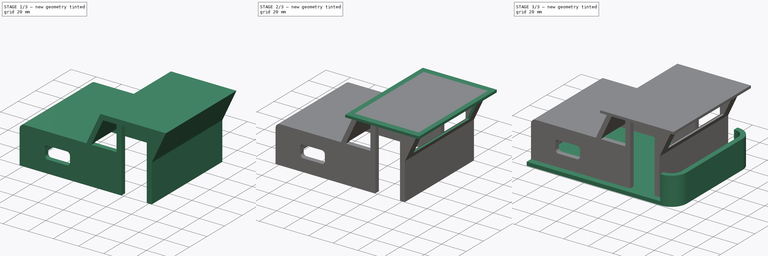
[diagram: build sequence overview — one tinted view per stage of 3, left to right]
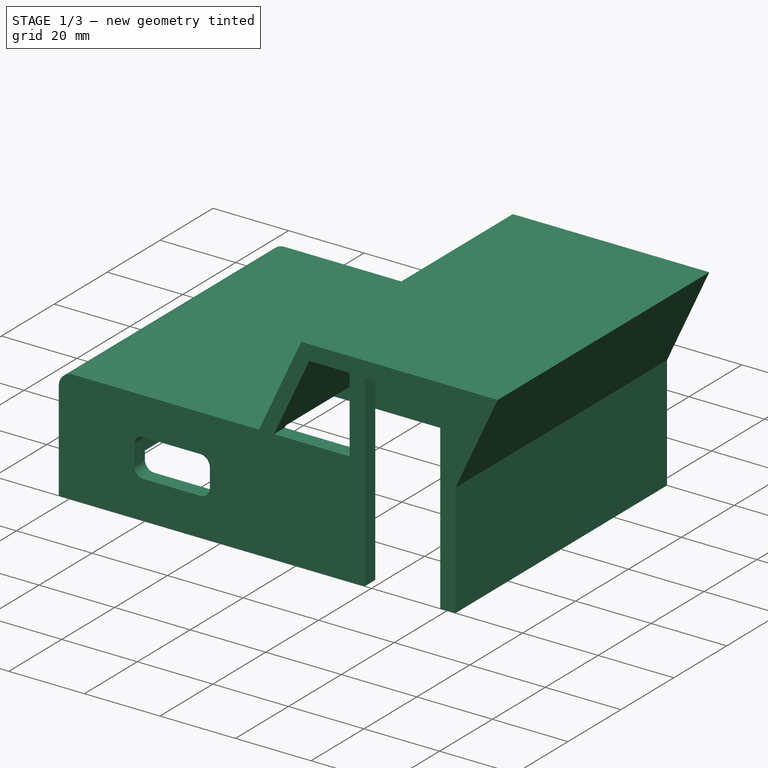
[diagram: stage 1 of 3 — iso view after this stage's code; geometry added in this stage tinted green]
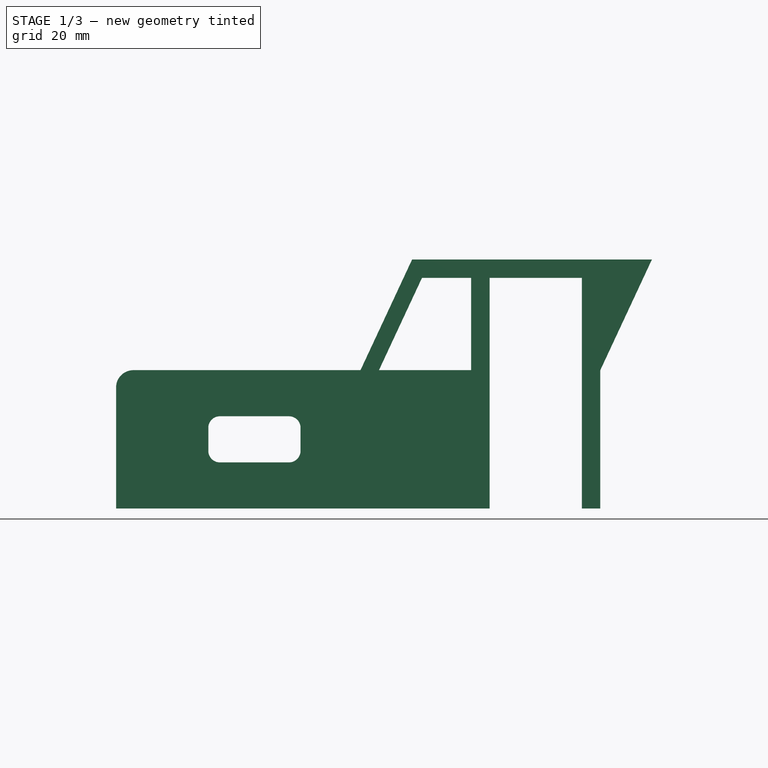
[diagram: stage 1 of 3 — front view after this stage's code; geometry added in this stage tinted green]
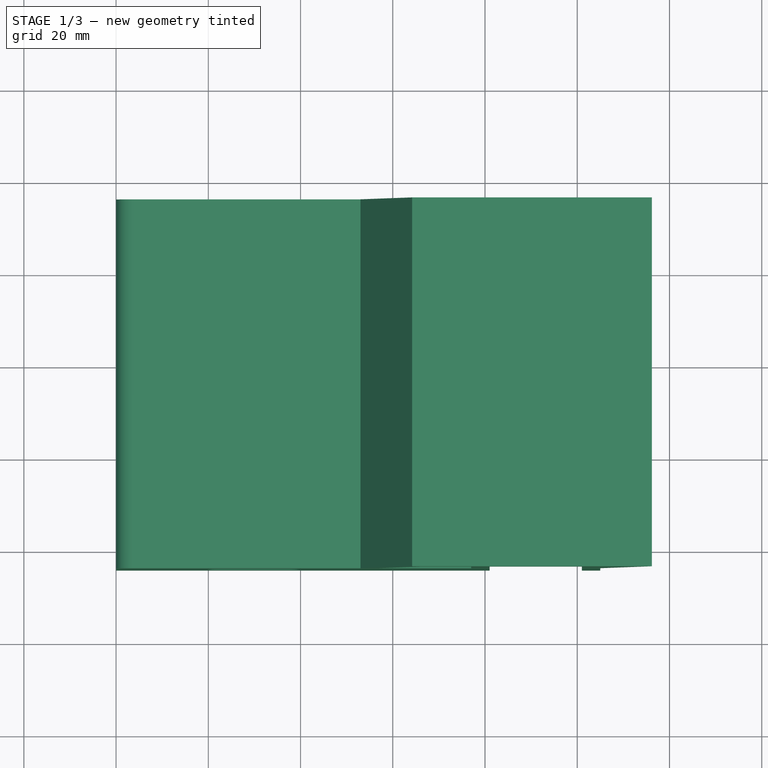
[diagram: stage 1 of 3 — top view after this stage's code; geometry added in this stage tinted green]
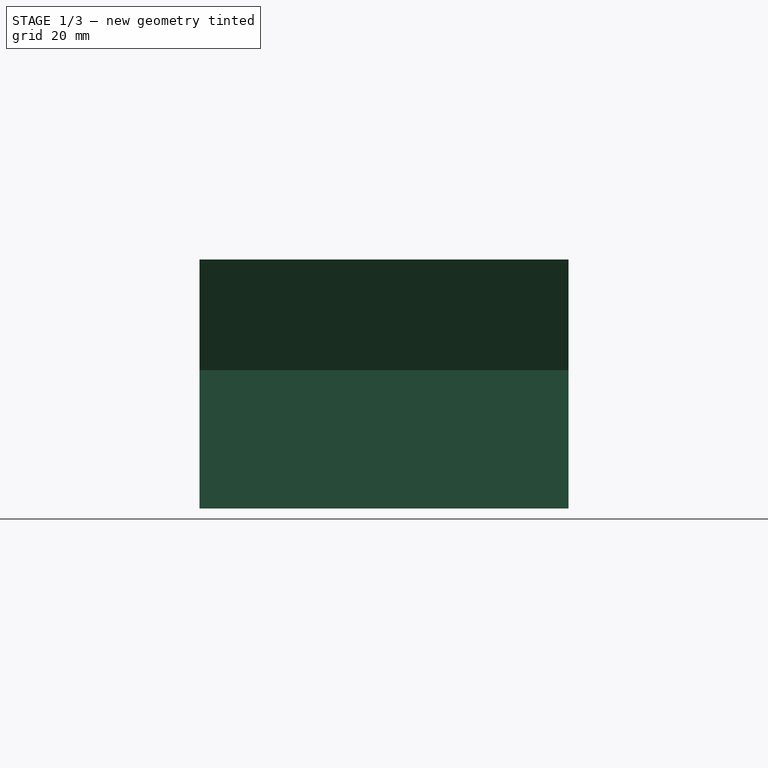
[diagram: stage 1 of 3 — right view after this stage's code; geometry added in this stage tinted green]
FCSTD DOCUMENT  (FreeCAD 0.20R29177 (Git))
Label: cabine
License: All rights reserved
LicenseURL: http://en.wikipedia.org/wiki/All_rights_reserved
objects: Sketcher::SketchObject×8, PartDesign::Pad×7, PartDesign::Pocket×1, PartDesign::Body×1
note: 25 computed .brp shape members not serialized (recipe doc carries the construction recipe); baked Part::Feature solids carry a one-line shape summary decoded from their .brp

FEATURE [Sketcher::SketchObject] Sketch
  FullyConstrained = true
  MapMode = 5
  Placement = pos=(0,0,0) rot=(1,0,0;1.5708rad)
  Support = -> [XZ_Plane]
  sketch-geometry (24):
    g0: LineSegment StartX=4.86624e-11 StartY=0 StartZ=0 EndX=4.86624e-11 EndY=26.25 EndZ=0
    g1: LineSegment StartX=3.75 StartY=30 StartZ=0 EndX=53 EndY=30 EndZ=0
    g2: LineSegment StartX=53 StartY=30 StartZ=0 EndX=64.1914 EndY=54 EndZ=0
    g3: LineSegment StartX=64.1914 StartY=54 StartZ=0 EndX=116.191 EndY=54 EndZ=0
    g4: LineSegment StartX=116.191 StartY=54 StartZ=0 EndX=105 EndY=30 EndZ=0
    g5: LineSegment StartX=105 StartY=30 StartZ=0 EndX=105 EndY=0 EndZ=0
    g6: LineSegment StartX=22.5 StartY=20 StartZ=0 EndX=37.5 EndY=20 EndZ=0
    g7: LineSegment StartX=40 StartY=17.5 StartZ=0 EndX=40 EndY=12.5 EndZ=0
    g8: LineSegment StartX=37.5 StartY=10 StartZ=0 EndX=22.5 EndY=10 EndZ=0
    g9: LineSegment StartX=20 StartY=12.5 StartZ=0 EndX=20 EndY=17.5 EndZ=0
    g10: LineSegment StartX=4.86624e-11 StartY=0 StartZ=0 EndX=81 EndY=0 EndZ=0
    g11: LineSegment StartX=81 StartY=0 StartZ=0 EndX=81 EndY=50 EndZ=0
    g12: LineSegment StartX=81 StartY=50 StartZ=0 EndX=101 EndY=50 EndZ=0
    g13: LineSegment StartX=101 StartY=50 StartZ=0 EndX=101 EndY=0 EndZ=0
    g14: LineSegment StartX=101 StartY=0 StartZ=0 EndX=105 EndY=0 EndZ=0
    g15: LineSegment StartX=77 StartY=50 StartZ=0 EndX=77 EndY=30 EndZ=0
    g16: LineSegment StartX=77 StartY=30 StartZ=0 EndX=57 EndY=30 EndZ=0
    g17: LineSegment StartX=57 StartY=30 StartZ=0 EndX=66.3262 EndY=50 EndZ=0
    g18: LineSegment StartX=66.3262 StartY=50 StartZ=0 EndX=77 EndY=50 EndZ=0
    g19: ArcOfCircle CenterX=22.5 CenterY=17.5 CenterZ=0 NormalX=0 NormalY=0 NormalZ=1 AngleXU=0 Radius=2.5 StartAngle=1.5708 EndAngle=3.14159
    g20: ArcOfCircle CenterX=22.5 CenterY=12.5 CenterZ=0 NormalX=0 NormalY=0 NormalZ=1 AngleXU=0 Radius=2.5 StartAngle=3.14159 EndAngle=4.71239
    g21: ArcOfCircle CenterX=37.5 CenterY=12.5 CenterZ=0 NormalX=0 NormalY=0 NormalZ=1 AngleXU=0 Radius=2.5 StartAngle=4.71239 EndAngle=6.28319
    g22: ArcOfCircle CenterX=37.5 CenterY=17.5 CenterZ=0 NormalX=0 NormalY=0 NormalZ=1 AngleXU=0 Radius=2.5 StartAngle=0 EndAngle=1.5708
    g23: ArcOfCircle CenterX=3.75 CenterY=26.25 CenterZ=0 NormalX=0 NormalY=0 NormalZ=1 AngleXU=0 Radius=3.75 StartAngle=1.5708 EndAngle=3.14159
  constraints (66):
    c: Coincident(g-1,g0)
    c: Horizontal(g1)
    c: Coincident(g1,g2)
    c: Coincident(g2,g3)
    c: Horizontal(g3)
    c: Coincident(g3,g4)
    c: Coincident(g4,g5)
    c: PointOnObject(g5,g-1)
    c: Vertical(g5)
    c: Horizontal(g6)
    c: Horizontal(g8)
    c: Vertical(g7)
    c: Vertical(g9)
    c: Coincident(g0,g10)
    c: Horizontal(g10)
    c: Coincident(g10,g11)
    c: Vertical(g11)
    c: Coincident(g11,g12)
    c: Horizontal(g12)
    c: Coincident(g12,g13)
    c: PointOnObject(g13,g-1)
    c: Vertical(g13)
    c: Coincident(g13,g14)
    c: Coincident(g14,g5)
    c: Vertical(g15)
    c: Coincident(g15,g16)
    c: Horizontal(g16)
    c: Coincident(g16,g17)
    c: Coincident(g17,g18)
    c: Coincident(g18,g15)
    c: Horizontal(g18)
    c: DistanceX(g0,g5) = 105
    c: DistanceX(g12,g12) = 20
    c: DistanceX(g14,g14) = 4
    c: DistanceX(g15,g11) = 4
    c: DistanceY(g16,g1) = 0
    c: DistanceX(g1,g16) = 4
    c: DistanceY(g4,g15) = 0
    c: DistanceY(g13,g13) = 50
    c: DistanceY(g15,g11) = 0
    c: DistanceY(g12,g3) = 4
    c: DistanceX(g3,g3) = 52
    c: Parallel(g4,g2)
    c: Parallel(g17,g2)
    c: Angle(g5,g4) = 2.70526
    c: Tangent(g6,g19) = 1.5708
    c: Tangent(g9,g19) = 1.5708
    c: Tangent(g9,g20) = 1.5708
    c: Tangent(g8,g20) = 1.5708
    c: Tangent(g8,g21) = 1.5708
    c: Tangent(g7,g21) = 1.5708
    c: Tangent(g7,g22) = 1.5708
    c: Tangent(g6,g22) = 1.5708
    c: Diameter(g22) = 5
    c: Diameter(g21) = 5
    c: Diameter(g19) = 5
    c: Diameter(g20) = 5
    c: DistanceY(g8,g6) = 10
    c: DistanceX(g9,g7) = 20
    c: DistanceX(g0,g9) = 20
    c: DistanceY(g0,g8) = 10
    c: Tangent(g1,g23) = 1.5708
    c: Tangent(g0,g23) = 1.5708
    c: Diameter(g23) = 7.5
    c: Vertical(g0)
    c: DistanceY(g0,g1) = 30
FEATURE [PartDesign::Pad] Pad
  Direction = (0,-1,2e-16)
  Length = 4
  Length2 = 10
  Placement = pos=(0,0,0) rot=(1,0,0;1.5708rad)
  Profile = -> Sketch
  ReferenceAxis = -> Sketch [N_Axis]
  Type = 0
FEATURE [Sketcher::SketchObject] Sketch001
  FullyConstrained = true
  MapMode = 5
  Placement = pos=(0,0,0) rot=(-1,0,0;1.5708rad)
  Support = -> [Pad]
  sketch-geometry (16):
    g0: LineSegment StartX=0 StartY=0 StartZ=0 EndX=0 EndY=-26.25 EndZ=0
    g1: LineSegment StartX=3.75 StartY=-30 StartZ=0 EndX=53 EndY=-30 EndZ=0
    g2: LineSegment StartX=53 StartY=-30 StartZ=0 EndX=64.1914 EndY=-54 EndZ=0
    g3: LineSegment StartX=64.1914 StartY=-54 StartZ=0 EndX=116.191 EndY=-54 EndZ=0
    g4: LineSegment StartX=116.191 StartY=-54 StartZ=0 EndX=105 EndY=-30 EndZ=0
    g5: LineSegment StartX=105 StartY=-30 StartZ=0 EndX=105 EndY=0 EndZ=0
    g6: LineSegment StartX=105 StartY=0 StartZ=0 EndX=103 EndY=0 EndZ=0
    g7: LineSegment StartX=103 StartY=0 StartZ=0 EndX=103 EndY=-30 EndZ=0
    g8: LineSegment StartX=103 StartY=-30 StartZ=0 EndX=113.259 EndY=-52 EndZ=0
    g9: LineSegment StartX=113.259 StartY=-52 StartZ=0 EndX=65.2588 EndY=-52 EndZ=0
    g10: LineSegment StartX=65.2588 StartY=-52 StartZ=0 EndX=54.0674 EndY=-28 EndZ=0
    g11: LineSegment StartX=54.0674 StartY=-28 StartZ=0 EndX=3.75 EndY=-28 EndZ=0
    g12: LineSegment StartX=2 StartY=-26.25 StartZ=0 EndX=2 EndY=0 EndZ=0
    g13: LineSegment StartX=2 StartY=0 StartZ=0 EndX=0 EndY=0 EndZ=0
    g14: ArcOfCircle CenterX=3.75 CenterY=-26.25 CenterZ=0 NormalX=0 NormalY=0 NormalZ=1 AngleXU=0 Radius=3.75 StartAngle=3.14159 EndAngle=4.71239
    g15: ArcOfCircle CenterX=3.75 CenterY=-26.25 CenterZ=0 NormalX=0 NormalY=0 NormalZ=1 AngleXU=0 Radius=1.75 StartAngle=3.14159 EndAngle=4.71239
  constraints (45):
    c: Coincident(g-1,g0)
    c: Horizontal(g1)
    c: Coincident(g1,g2)
    c: Coincident(g2,g3)
    c: Horizontal(g3)
    c: Coincident(g3,g4)
    c: Coincident(g4,g5)
    c: Vertical(g5)
    c: Coincident(g5,g6)
    c: Coincident(g6,g7)
    c: Vertical(g7)
    c: Coincident(g7,g8)
    c: Coincident(g8,g9)
    c: Horizontal(g9)
    c: Coincident(g9,g10)
    c: Coincident(g10,g11)
    c: Horizontal(g11)
    c: Vertical(g12)
    c: Coincident(g12,g13)
    c: Coincident(g13,g0)
    c: Horizontal(g13)
    c: PointOnObject(g5,g-1)
    c: Horizontal(g6)
    c: DistanceX(g0,g5) = 105
    c: DistanceX(g6,g6) = 2
    c: DistanceX(g13,g13) = 2
    c: Tangent(g0,g14) = -1.5708
    c: Tangent(g1,g14) = -1.5708
    c: Tangent(g11,g15) = 1.5708
    c: Tangent(g12,g15) = 1.5708
    c: Angle(g4,g5) = 2.70526
    c: DistanceY(g1,g4) = 0
    c: DistanceY(g1,g0) = 30
    c: Diameter(g14) = 7.5
    c: Vertical(g0)
    c: Diameter(g15) = 3.5
    c: DistanceY(g3,g8) = 2
    c: DistanceY(g3,g0) = 54
    c: Parallel(g8,g4)
    c: Parallel(g10,g4)
    c: DistanceY(g7,g4) = 0
    c: DistanceY(g1,g11) = 2
    c: Parallel(g2,g10)
    c: DistanceX(g0,g1) = 53
    c: DistanceX(g9,g9) = 48
FEATURE [PartDesign::Pad] Pad001
  BaseFeature = -> Pad
  Direction = (0,1,-2e-16)
  Length = 72
  Length2 = 10
  Placement = pos=(0,0,0) rot=(1,0,0;1.5708rad)
  Profile = -> Sketch001
  ReferenceAxis = -> Sketch001 [N_Axis]
  Type = 0
FEATURE [Sketcher::SketchObject] Sketch002
  FullyConstrained = true
  MapMode = 5
  Placement = pos=(0,72,-1.6e-14) rot=(-1,0,0;1.5708rad)
  Support = -> [Pad001]
  sketch-geometry (24):
    g0: LineSegment StartX=0 StartY=0 StartZ=0 EndX=0 EndY=-26.25 EndZ=0
    g1: LineSegment StartX=3.75 StartY=-30 StartZ=0 EndX=53 EndY=-30 EndZ=0
    g2: LineSegment StartX=53 StartY=-30 StartZ=0 EndX=64.1914 EndY=-54 EndZ=0
    g3: LineSegment StartX=64.1914 StartY=-54 StartZ=0 EndX=116.191 EndY=-54 EndZ=0
    g4: LineSegment StartX=116.191 StartY=-54 StartZ=0 EndX=105 EndY=-30 EndZ=0
    g5: LineSegment StartX=105 StartY=-30 StartZ=0 EndX=105 EndY=0 EndZ=0
    g6: LineSegment StartX=105 StartY=0 StartZ=0 EndX=101 EndY=0 EndZ=0
    g7: LineSegment StartX=101 StartY=0 StartZ=0 EndX=101 EndY=-50 EndZ=0
    g8: LineSegment StartX=101 StartY=-50 StartZ=0 EndX=81 EndY=-50 EndZ=0
    g9: LineSegment StartX=81 StartY=-50 StartZ=0 EndX=81 EndY=0 EndZ=0
    g10: LineSegment StartX=81 StartY=0 StartZ=0 EndX=0 EndY=0 EndZ=0
    g11: ArcOfCircle CenterX=3.75 CenterY=-26.25 CenterZ=0 NormalX=0 NormalY=0 NormalZ=1 AngleXU=0 Radius=3.75 StartAngle=3.14159 EndAngle=4.71239
    g12: LineSegment StartX=22.5 StartY=-10 StartZ=0 EndX=37.5 EndY=-10 EndZ=0
    g13: LineSegment StartX=40 StartY=-12.5 StartZ=0 EndX=40 EndY=-17.5 EndZ=0
    g14: LineSegment StartX=37.5 StartY=-20 StartZ=0 EndX=22.5 EndY=-20 EndZ=0
    g15: LineSegment StartX=20 StartY=-17.5 StartZ=0 EndX=20 EndY=-12.5 EndZ=0
    g16: LineSegment StartX=57 StartY=-30 StartZ=0 EndX=77 EndY=-30 EndZ=0
    g17: LineSegment StartX=77 StartY=-30 StartZ=0 EndX=77 EndY=-50 EndZ=0
    g18: LineSegment StartX=77 StartY=-50 StartZ=0 EndX=66.3262 EndY=-50 EndZ=0
    g19: LineSegment StartX=66.3262 StartY=-50 StartZ=0 EndX=57 EndY=-30 EndZ=0
    g20: ArcOfCircle CenterX=22.5 CenterY=-12.5 CenterZ=0 NormalX=0 NormalY=0 NormalZ=1 AngleXU=0 Radius=2.5 StartAngle=1.5708 EndAngle=3.14159
    g21: ArcOfCircle CenterX=22.5 CenterY=-17.5 CenterZ=0 NormalX=0 NormalY=0 NormalZ=1 AngleXU=0 Radius=2.5 StartAngle=3.14159 EndAngle=4.71239
    g22: ArcOfCircle CenterX=37.5 CenterY=-17.5 CenterZ=0 NormalX=0 NormalY=0 NormalZ=1 AngleXU=0 Radius=2.5 StartAngle=4.71239 EndAngle=6.28319
    g23: ArcOfCircle CenterX=37.5 CenterY=-12.5 CenterZ=0 NormalX=0 NormalY=0 NormalZ=1 AngleXU=0 Radius=2.5 StartAngle=0 EndAngle=1.5708
  constraints (66):
    c: Vertical(g0)
    c: Horizontal(g1)
    c: Coincident(g1,g2)
    c: Coincident(g2,g3)
    c: Horizontal(g3)
    c: Coincident(g3,g4)
    c: Coincident(g4,g5)
    c: PointOnObject(g5,g-1)
    c: Vertical(g5)
    c: Coincident(g5,g6)
    c: PointOnObject(g6,g-1)
    c: Coincident(g6,g7)
    c: Vertical(g7)
    c: Coincident(g7,g8)
    c: Horizontal(g8)
    c: Coincident(g8,g9)
    c: PointOnObject(g9,g-1)
    c: Vertical(g9)
    c: Coincident(g9,g10)
    c: Coincident(g0,g-1)
    c: Coincident(g10,g0)
    c: DistanceY(g7,g7) = 50
    c: DistanceY(g3,g7) = 4
    c: DistanceX(g0,g5) = 105
    c: Tangent(g0,g11) = -1.5708
    c: Tangent(g1,g11) = -1.5708
    c: DistanceY(g1,g0) = 30
    c: Diameter(g11) = 7.5
    c: Angle(g4,g5) = 2.70526
    c: Parallel(g4,g2)
    c: DistanceX(g8,g8) = 20
    c: Horizontal(g12)
    c: Horizontal(g14)
    c: Vertical(g13)
    c: Vertical(g15)
    c: Horizontal(g16)
    c: Coincident(g16,g17)
    c: Vertical(g17)
    c: Coincident(g17,g18)
    c: Coincident(g18,g19)
    c: Coincident(g19,g16)
    c: DistanceX(g17,g8) = 4
    c: Horizontal(g18)
    c: Parallel(g19,g2)
    c: DistanceY(g17,g8) = 0
    c: DistanceY(g4,g16) = 0
    c: DistanceY(g16,g1) = 0
    c: DistanceX(g3,g3) = 52
    c: DistanceX(g1,g16) = 4
    c: DistanceX(g6,g6) = 4
    c: Tangent(g12,g20) = 1.5708
    c: Tangent(g15,g20) = 1.5708
    c: Tangent(g15,g21) = 1.5708
    c: Tangent(g14,g21) = 1.5708
    c: Tangent(g14,g22) = 1.5708
    c: Tangent(g13,g22) = 1.5708
    c: Tangent(g13,g23) = 1.5708
    c: Tangent(g12,g23) = 1.5708
    c: DistanceY(g14,g12) = 10
    c: DistanceX(g15,g13) = 20
    c: DistanceY(g12,g0) = 10
    c: Diameter(g23) = 5
    c: Diameter(g22) = 5
    c: Diameter(g20) = 5
    c: Diameter(g21) = 5
    c: DistanceX(g0,g15) = 20
FEATURE [PartDesign::Pad] Pad002
  BaseFeature = -> Pad001
  Direction = (0,1,-2e-16)
  Length = 4
  Length2 = 10
  Placement = pos=(0,0,0) rot=(1,0,0;1.5708rad)
  Profile = -> Sketch002
  ReferenceAxis = -> Sketch002 [N_Axis]
  Type = 0
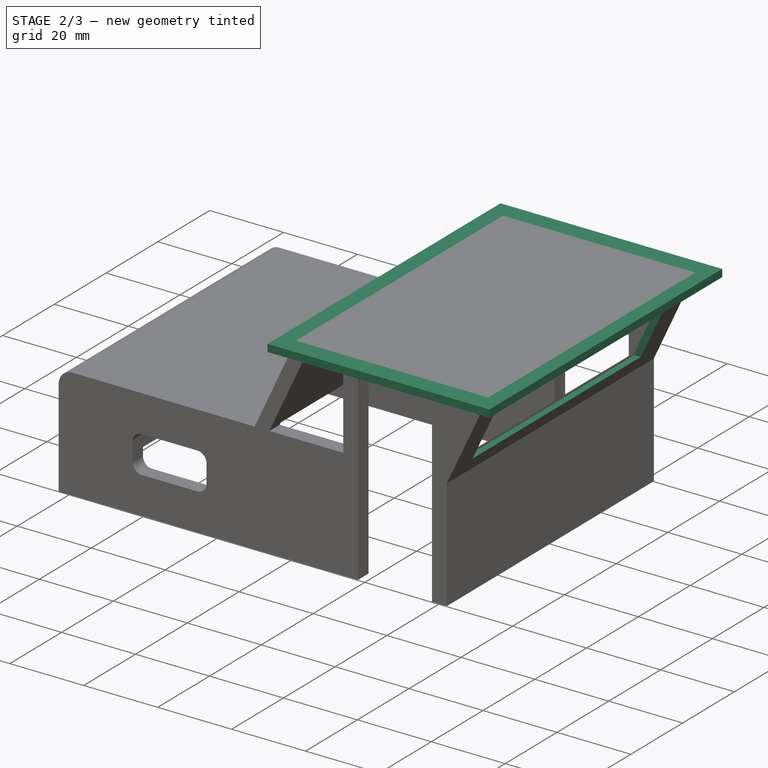
[diagram: stage 2 of 3 — iso view after this stage's code; geometry added in this stage tinted green]
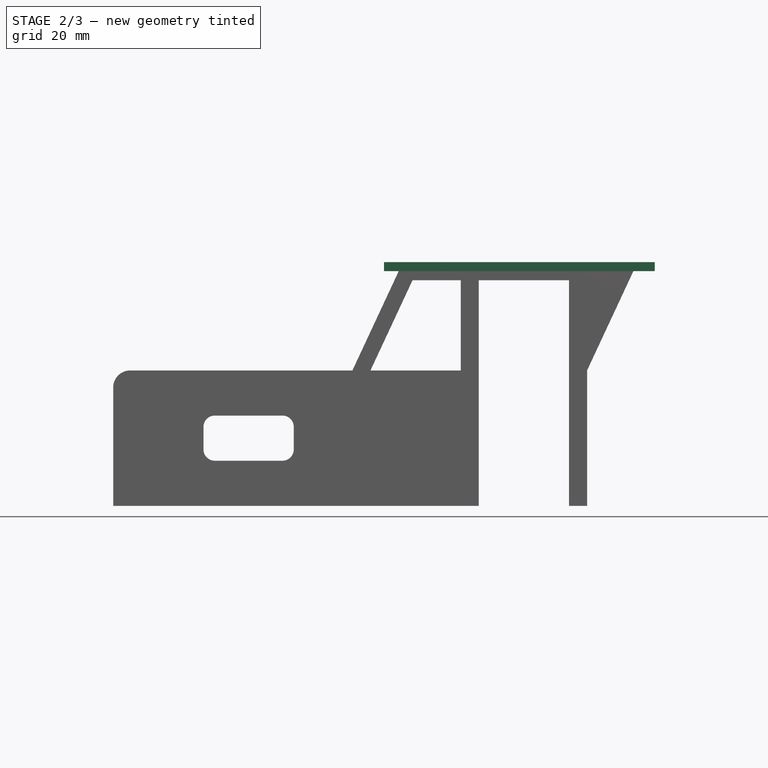
[diagram: stage 2 of 3 — front view after this stage's code; geometry added in this stage tinted green]
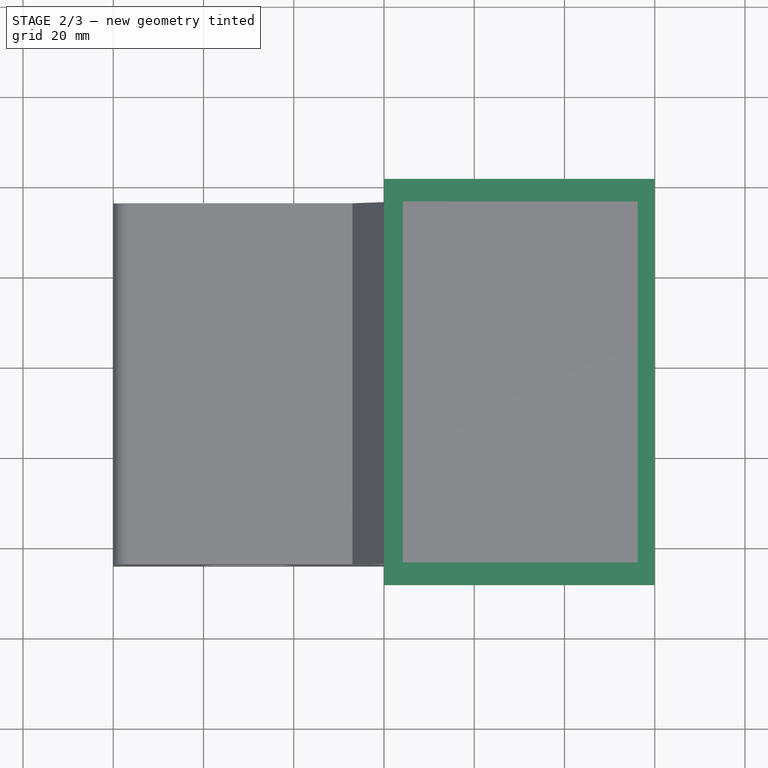
[diagram: stage 2 of 3 — top view after this stage's code; geometry added in this stage tinted green]
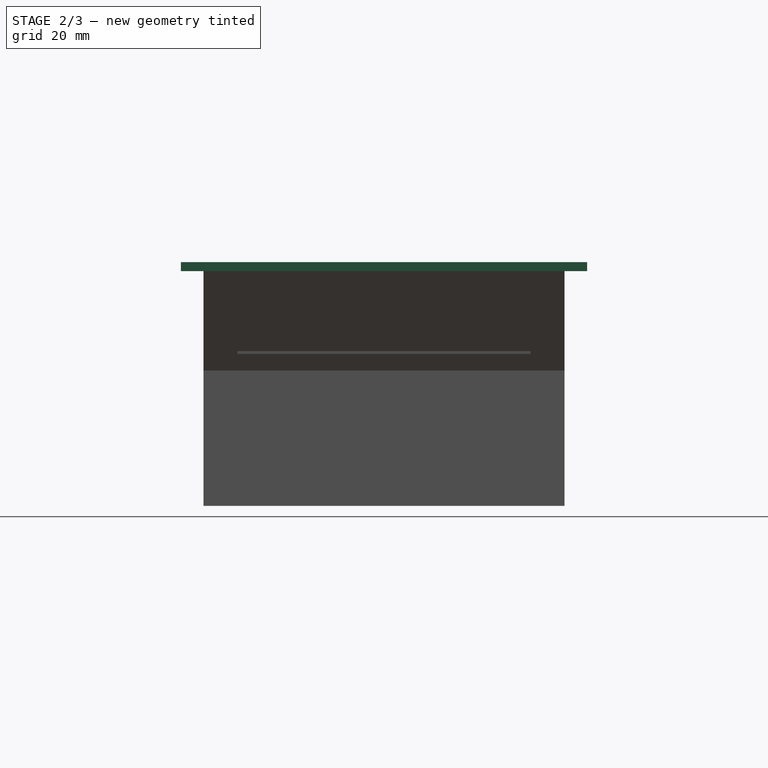
[diagram: stage 2 of 3 — right view after this stage's code; geometry added in this stage tinted green]
FEATURE [Sketcher::SketchObject] Sketch003
  FullyConstrained = true
  MapMode = 5
  Placement = pos=(0,1.2e-14,54) rot=(0,0,1;3.14159rad)
  Support = -> [Pad002]
  sketch-geometry (4):
    g0: LineSegment StartX=-120 StartY=9 StartZ=0 EndX=-60 EndY=9 EndZ=0
    g1: LineSegment StartX=-60 StartY=9 StartZ=0 EndX=-60 EndY=-81 EndZ=0
    g2: LineSegment StartX=-60 StartY=-81 StartZ=0 EndX=-120 EndY=-81 EndZ=0
    g3: LineSegment StartX=-120 StartY=-81 StartZ=0 EndX=-120 EndY=9 EndZ=0
  constraints (12):
    c: Coincident(g0,g1)
    c: Coincident(g1,g2)
    c: Coincident(g2,g3)
    c: Coincident(g3,g0)
    c: Horizontal(g0)
    c: Horizontal(g2)
    c: Vertical(g1)
    c: Vertical(g3)
    c: DistanceY(g1,g1) = 90
    c: DistanceX(g0,g0) = 60
    c: DistanceY(g-1,g0) = 9
    c: DistanceX(g0,g-1) = 60
FEATURE [PartDesign::Pad] Pad003
  BaseFeature = -> Pad002
  Direction = (0,2e-16,1)
  Length = 2
  Length2 = 10
  Placement = pos=(0,0,0) rot=(1,0,0;1.5708rad)
  Profile = -> Sketch003
  ReferenceAxis = -> Sketch003 [N_Axis]
  Reversed = true
  Type = 0
FEATURE [Sketcher::SketchObject] Sketch004
  FullyConstrained = false
  MapMode = 5
  Placement = pos=(105,0,0) rot=(0.707107,0,0.707107;3.14159rad)
  Support = -> [Pad003]
  sketch-geometry (4):
    g0: LineSegment StartX=33.6783 StartY=-3.5 StartZ=0 EndX=50.6783 EndY=-3.5 EndZ=0
    g1: LineSegment StartX=50.6783 StartY=-3.5 StartZ=0 EndX=50.6783 EndY=-68.5 EndZ=0
    g2: LineSegment StartX=50.6783 StartY=-68.5 StartZ=0 EndX=33.6783 EndY=-68.5 EndZ=0
    g3: LineSegment StartX=33.6783 StartY=-68.5 StartZ=0 EndX=33.6783 EndY=-3.5 EndZ=0
  constraints (11):
    c: Coincident(g0,g1)
    c: Coincident(g1,g2)
    c: Coincident(g2,g3)
    c: Coincident(g3,g0)
    c: Horizontal(g0)
    c: Horizontal(g2)
    c: Vertical(g1)
    c: Vertical(g3)
    c: DistanceX(g0,g0) = 17
    c: DistanceY(g3,g3) = 65
    c: DistanceY(g0,g-1) = 3.5
FEATURE [PartDesign::Pocket] Pocket
  BaseFeature = -> Pad003
  Direction = (-1,0,-2e-16)
  Length = 5
  Length2 = 5
  Placement = pos=(0,0,0) rot=(1,0,0;1.5708rad)
  Profile = -> Sketch004
  ReferenceAxis = -> Sketch004 [N_Axis]
  Reversed = true
  Type = 1
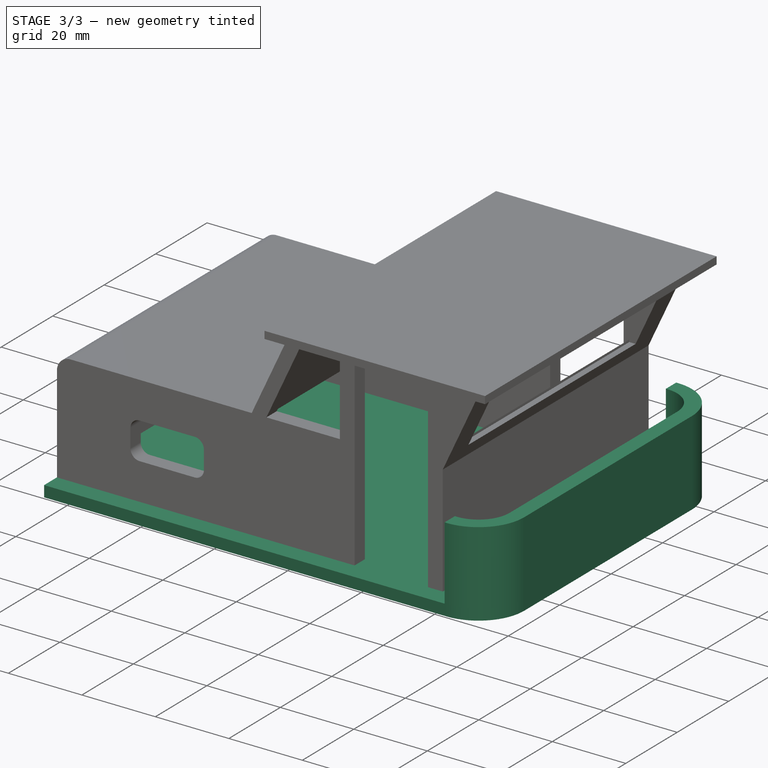
[diagram: stage 3 of 3 — iso view after this stage's code; geometry added in this stage tinted green]
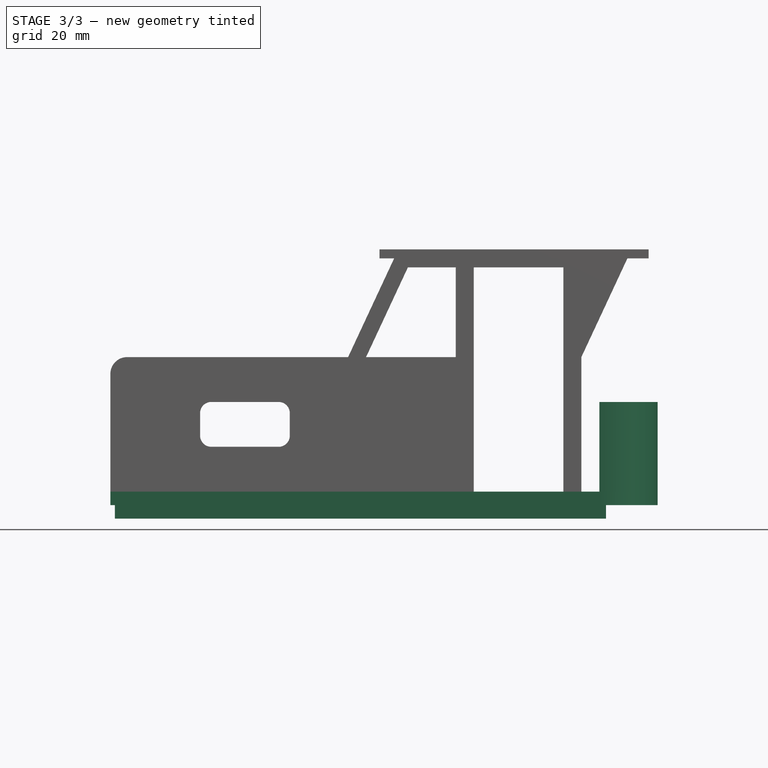
[diagram: stage 3 of 3 — front view after this stage's code; geometry added in this stage tinted green]
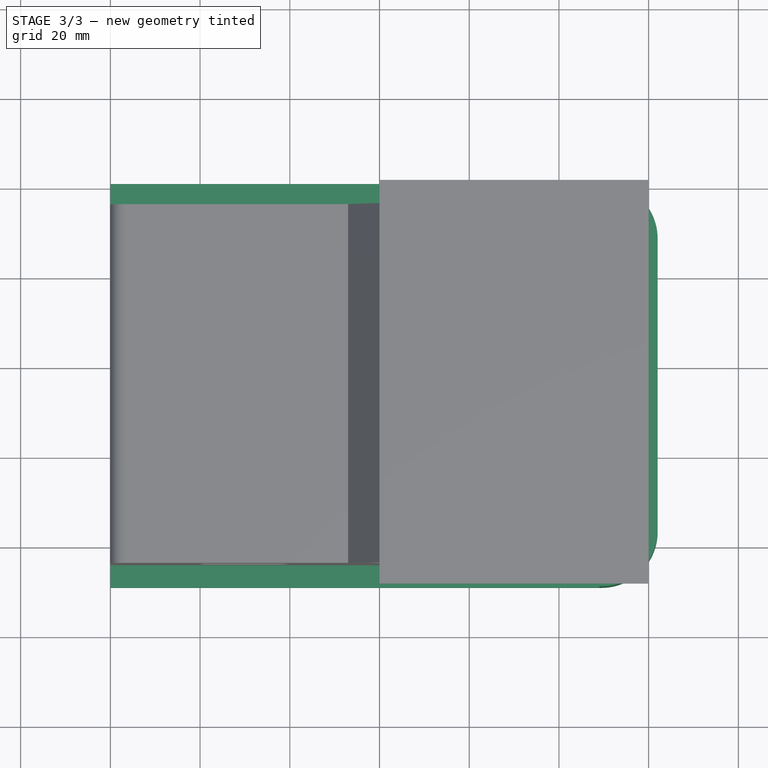
[diagram: stage 3 of 3 — top view after this stage's code; geometry added in this stage tinted green]
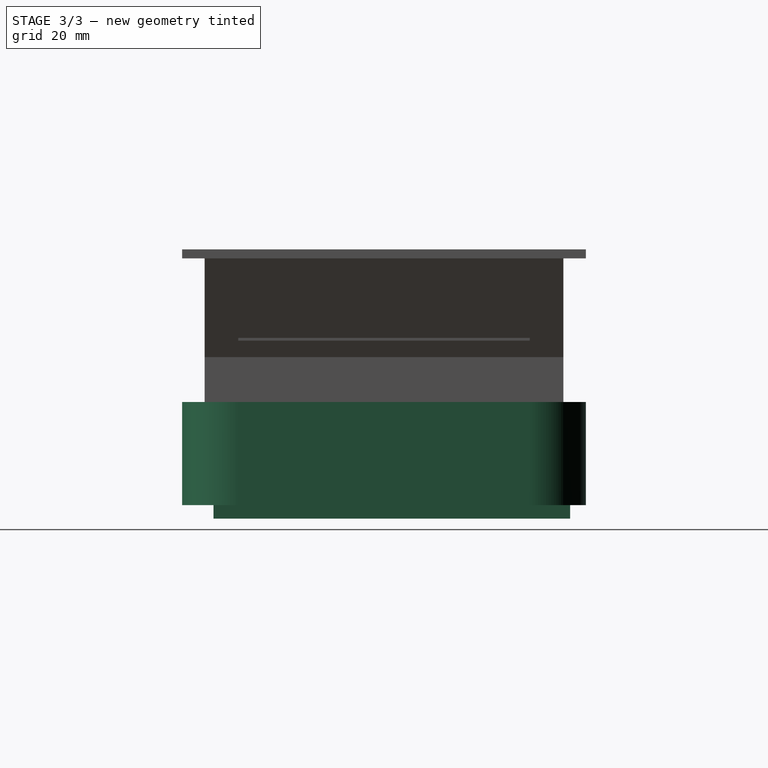
[diagram: stage 3 of 3 — right view after this stage's code; geometry added in this stage tinted green]
FEATURE [Sketcher::SketchObject] Sketch005
  FullyConstrained = true
  MapMode = 5
  Placement = pos=(0,0,0) rot=(1,0,0;3.14159rad)
  Support = -> [Pocket]
  sketch-geometry (6):
    g0: LineSegment StartX=0 StartY=9 StartZ=0 EndX=109.5 EndY=9 EndZ=0
    g1: LineSegment StartX=122 StartY=-3.5 StartZ=0 EndX=122 EndY=-68.5 EndZ=0
    g2: LineSegment StartX=109.5 StartY=-81 StartZ=0 EndX=0 EndY=-81 EndZ=0
    g3: LineSegment StartX=0 StartY=-81 StartZ=0 EndX=0 EndY=9 EndZ=0
    g4: ArcOfCircle CenterX=109.5 CenterY=-3.5 CenterZ=0 NormalX=0 NormalY=0 NormalZ=1 AngleXU=0 Radius=12.5 StartAngle=0 EndAngle=1.5708
    g5: ArcOfCircle CenterX=109.5 CenterY=-68.5 CenterZ=0 NormalX=0 NormalY=0 NormalZ=1 AngleXU=0 Radius=12.5 StartAngle=4.71239 EndAngle=6.28319
  constraints (16):
    c: Coincident(g2,g3)
    c: Coincident(g3,g0)
    c: Horizontal(g0)
    c: Horizontal(g2)
    c: Vertical(g1)
    c: Vertical(g3)
    c: DistanceX(g0,g-1) = 0
    c: DistanceY(g-1,g0) = 9
    c: Tangent(g0,g4) = 1.5708
    c: Tangent(g1,g4) = 1.5708
    c: Tangent(g1,g5) = 1.5708
    c: Tangent(g2,g5) = 1.5708
    c: Diameter(g4) = 25
    c: Diameter(g5) = 25
    c: DistanceY(g3,g3) = 90
    c: DistanceX(g0,g1) = 122
FEATURE [PartDesign::Pad] Pad004
  BaseFeature = -> Pocket
  Direction = (0,-2e-16,-1)
  Length = 3
  Length2 = 10
  Placement = pos=(0,0,0) rot=(1,0,0;1.5708rad)
  Profile = -> Sketch005
  ReferenceAxis = -> Sketch005 [N_Axis]
  Type = 0
FEATURE [Sketcher::SketchObject] Sketch006
  FullyConstrained = true
  MapMode = 5
  Placement = pos=(0,0,0) rot=(0,0,1;3.14159rad)
  Support = -> [Pad004]
  sketch-geometry (8):
    g0: LineSegment StartX=-118 StartY=-3.48528 StartZ=0 EndX=-118 EndY=-68.5147 EndZ=0
    g1: LineSegment StartX=-122 StartY=-68.51 StartZ=0 EndX=-122 EndY=-3.49 EndZ=0
    g2: ArcOfCircle CenterX=-109.5 CenterY=-3.49 CenterZ=0 NormalX=0 NormalY=0 NormalZ=1 AngleXU=0 Radius=12.5 StartAngle=1.53079 EndAngle=3.14159
    g3: ArcOfCircle CenterX=-109.5 CenterY=-68.51 CenterZ=0 NormalX=0 NormalY=0 NormalZ=1 AngleXU=0 Radius=12.5 StartAngle=3.14159 EndAngle=4.7524
    g4: ArcOfCircle CenterX=-109.5 CenterY=-68.5147 CenterZ=0 NormalX=0 NormalY=0 NormalZ=1 AngleXU=0 Radius=8.5 StartAngle=3.14159 EndAngle=4.77125
    g5: ArcOfCircle CenterX=-109.5 CenterY=-3.48528 CenterZ=0 NormalX=0 NormalY=0 NormalZ=1 AngleXU=0 Radius=8.5 StartAngle=1.51194 EndAngle=3.14159
    g6: LineSegment StartX=-109 StartY=-77 StartZ=0 EndX=-109 EndY=-81 EndZ=0
    g7: LineSegment StartX=-109 StartY=9 StartZ=0 EndX=-109 EndY=5 EndZ=0
  constraints (24):
    c: Vertical(g0)
    c: Tangent(g1,g2) = 1.5708
    c: Tangent(g1,g3) = 1.5708
    c: Tangent(g0,g4) = -1.5708
    c: Tangent(g0,g5) = -1.5708
    c: Vertical(g1)
    c: Diameter(g2) = 25
    c: Diameter(g5) = 17
    c: Diameter(g3) = 25
    c: Diameter(g4) = 17
    c: DistanceX(g1,g0) = 4
    c: DistanceX(g1,g-1) = 122
    c: Coincident(g6,g4)
    c: Coincident(g6,g3)
    c: Coincident(g7,g2)
    c: Coincident(g7,g5)
    c: Vertical(g7)
    c: DistanceY(g7,g7) = 4
    c: DistanceY(g-1,g2) = 9
    c: DistanceY(g6,g6) = 4
    c: DistanceY(g3,g-1) = 81
    c: DistanceX(g4,g5) = 0
    c: DistanceX(g0,g5) = 9
    c: Vertical(g6)
FEATURE [PartDesign::Pad] Pad005
  BaseFeature = -> Pad004
  Direction = (0,2e-16,1)
  Length = 20
  Length2 = 10
  Placement = pos=(0,0,0) rot=(1,0,0;1.5708rad)
  Profile = -> Sketch006
  ReferenceAxis = -> Sketch006 [N_Axis]
  Type = 0
FEATURE [Sketcher::SketchObject] Sketch007
  FullyConstrained = true
  MapMode = 5
  Placement = pos=(0,-7e-16,-3) rot=(1,0,0;3.14159rad)
  Support = -> [Pad005]
  sketch-geometry (8):
    g0: LineSegment StartX=1 StartY=2 StartZ=0 EndX=110.5 EndY=2 EndZ=0
    g1: LineSegment StartX=110.5 StartY=2 StartZ=0 EndX=110.5 EndY=-77.5 EndZ=0
    g2: LineSegment StartX=110.5 StartY=-77.5 StartZ=0 EndX=1 EndY=-77.5 EndZ=0
    g3: LineSegment StartX=1 StartY=-77.5 StartZ=0 EndX=1 EndY=2 EndZ=0
    g4: LineSegment StartX=3 StartY=0 StartZ=0 EndX=108.5 EndY=0 EndZ=0
    g5: LineSegment StartX=108.5 StartY=0 StartZ=0 EndX=108.5 EndY=-75.5 EndZ=0
    g6: LineSegment StartX=108.5 StartY=-75.5 StartZ=0 EndX=3 EndY=-75.5 EndZ=0
    g7: LineSegment StartX=3 StartY=-75.5 StartZ=0 EndX=3 EndY=0 EndZ=0
  constraints (24):
    c: Coincident(g0,g1)
    c: Coincident(g1,g2)
    c: Coincident(g2,g3)
    c: Coincident(g3,g0)
    c: Horizontal(g0)
    c: Horizontal(g2)
    c: Vertical(g1)
    c: Vertical(g3)
    c: DistanceY(g1,g1) = 79.5
    c: DistanceX(g0,g0) = 109.5
    c: DistanceY(g-1,g0) = 2
    c: Coincident(g4,g5)
    c: Coincident(g5,g6)
    c: Coincident(g6,g7)
    c: Coincident(g7,g4)
    c: Horizontal(g4)
    c: Horizontal(g6)
    c: Vertical(g5)
    c: Vertical(g7)
    c: PointOnObject(g4,g-1)
    c: DistanceX(g5,g1) = 2
    c: DistanceY(g1,g5) = 2
    c: DistanceX(g0,g4) = 2
    c: DistanceX(g-1,g0) = 1
FEATURE [PartDesign::Pad] Pad006
  BaseFeature = -> Pad005
  Direction = (0,-2e-16,-1)
  Length = 3
  Length2 = 10
  Placement = pos=(0,0,0) rot=(1,0,0;1.5708rad)
  Profile = -> Sketch007
  ReferenceAxis = -> Sketch007 [N_Axis]
  Type = 0
FEATURE [PartDesign::Body] Body
  Group = -> [Sketch,Pad,Sketch001,Pad001,Sketch002,Pad002,Sketch003,Pad003,Sketch004,Pocket,Sketch005,Pad004,Sketch006,Pad005,Sketch007,Pad006]
  Origin = -> Origin
  Tip = -> Pad006
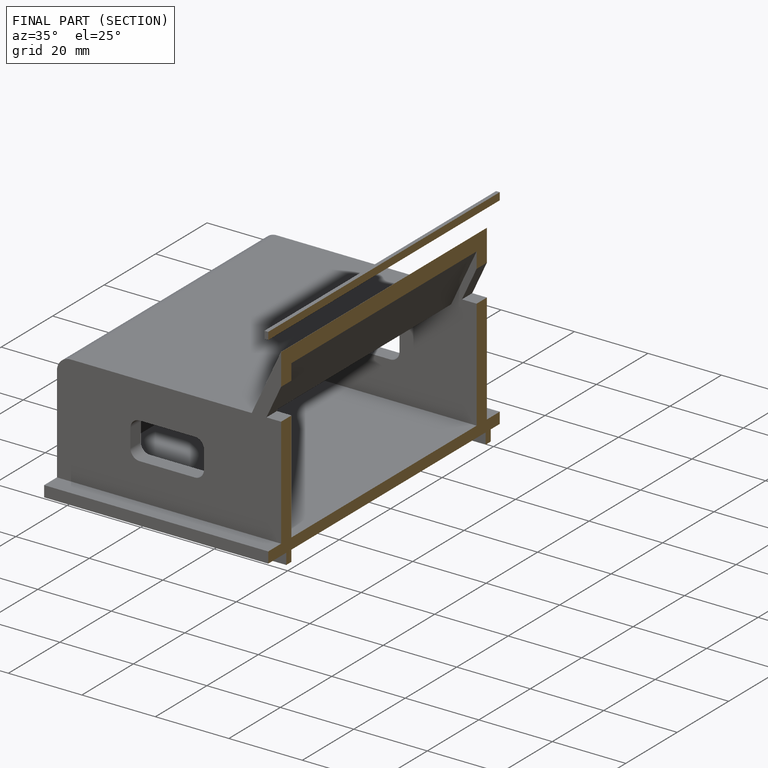
[diagram: finished part — half-section view (interior)]
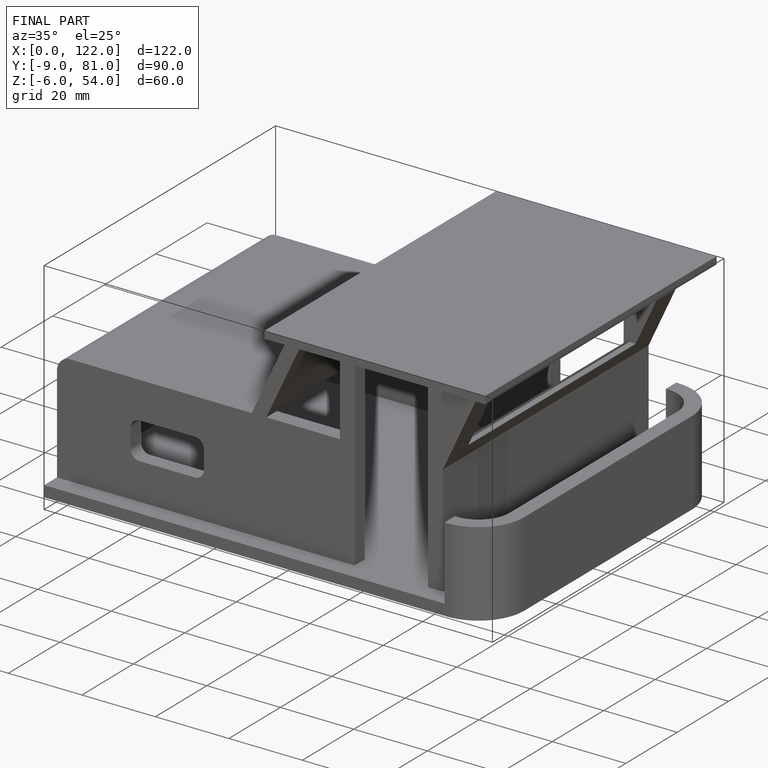
[diagram: finished part — iso view with bounding-box wireframe]
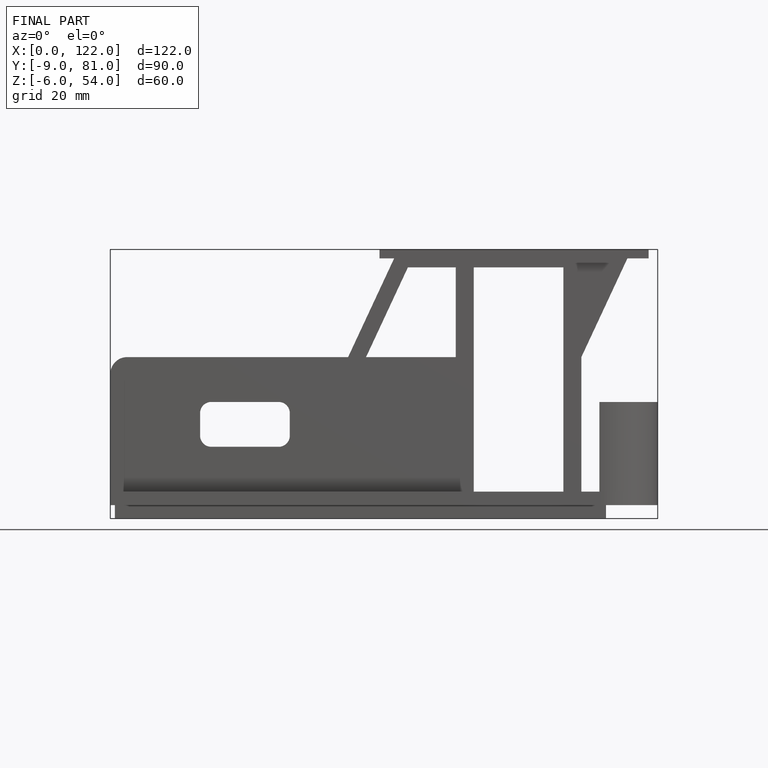
[diagram: finished part — front view with bounding-box wireframe]
